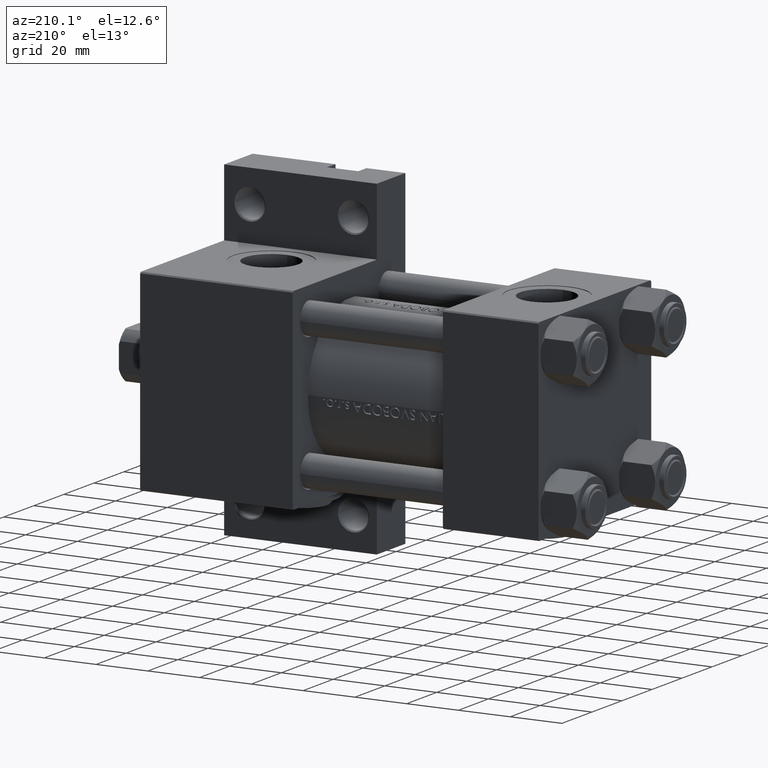
[diagram: clean part render]
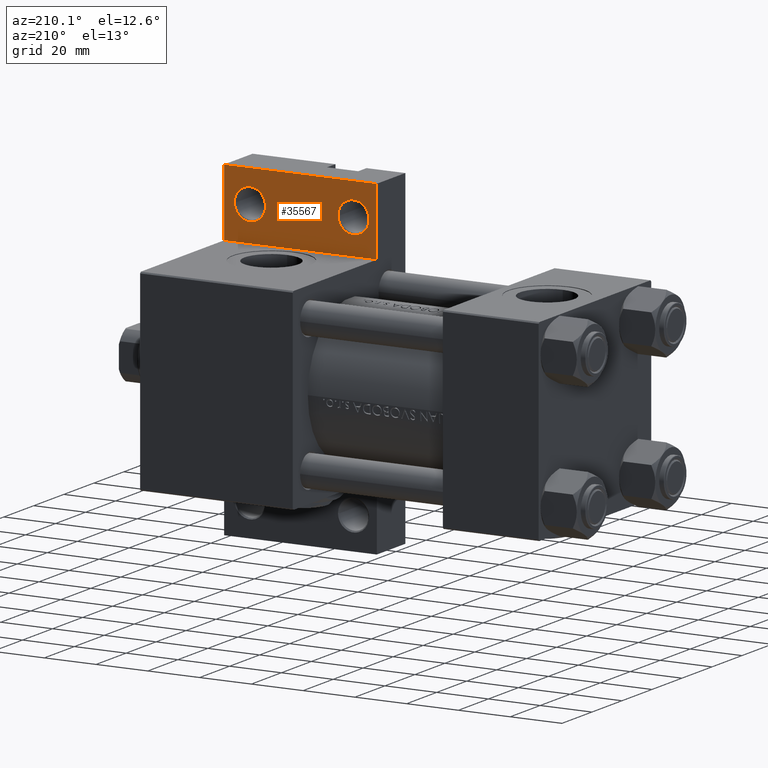
[diagram: same view with one face highlighted and labeled with its STEP entity id]
A machine part, auxiliary view. The second image highlights one B-rep face of the part: STEP entity #35567.
In plain terms, the highlighted planar face has unit normal (0, -1, 0).
Its self-contained STEP definition (entity closure, byte-faithful):
#967 = EDGE_CURVE ( 'NONE', #33655, #18885, #31754, .T. ) ;
#1028 = CARTESIAN_POINT ( 'NONE',  ( 153.9999999999999716, -63.50000000000002842, -18.50000000000000000 ) ) ;
#3490 = VECTOR ( 'NONE', #7738, 1000.000000000000000 ) ;
#5004 = CIRCLE ( 'NONE', #21058, 5.999500000000046462 ) ;
#5190 = CARTESIAN_POINT ( 'NONE',  ( 143.9999999999999716, -51.00000000000000000, -18.50000000000000000 ) ) ;
#5762 = EDGE_CURVE ( 'NONE', #24604, #45387, #16284, .T. ) ;
#6164 = DIRECTION ( 'NONE',  ( -1.000000000000000000, 0.000000000000000000, 0.000000000000000000 ) ) ;
#6352 = CARTESIAN_POINT ( 'NONE',  ( 0.000000000000000000, 0.000000000000000000, -18.50000000000000000 ) ) ;
#6637 = AXIS2_PLACEMENT_3D ( 'NONE', #7726, #8469, #38602 ) ;
#6718 = EDGE_CURVE ( 'NONE', #45387, #33655, #22314, .T. ) ;
#6927 = CARTESIAN_POINT ( 'NONE',  ( 95.00000000000000000, -37.50000000000000000, -18.50000000000000000 ) ) ;
#7726 = CARTESIAN_POINT ( 'NONE',  ( 103.9999999999999574, -50.99999999999999289, -18.50000000000000000 ) ) ;
#7738 = DIRECTION ( 'NONE',  ( -0.000000000000000000, -1.000000000000000000, -0.000000000000000000 ) ) ;
#8420 = CARTESIAN_POINT ( 'NONE',  ( 94.99999999999998579, -63.50000000000000000, -18.50000000000000000 ) ) ;
#8469 = DIRECTION ( 'NONE',  ( 0.000000000000000000, 0.000000000000000000, -1.000000000000000000 ) ) ;
#10429 = DIRECTION ( 'NONE',  ( 0.000000000000000000, 0.000000000000000000, -1.000000000000000000 ) ) ;
#11566 = ORIENTED_EDGE ( 'NONE', *, *, #29665, .F. ) ;
#12532 = VECTOR ( 'NONE', #19946, 1000.000000000000000 ) ;
#12971 = DIRECTION ( 'NONE',  ( -1.000000000000000000, 0.000000000000000000, 0.000000000000000000 ) ) ;
#13396 = DIRECTION ( 'NONE',  ( 0.000000000000000000, 0.000000000000000000, -1.000000000000000000 ) ) ;
#13904 = AXIS2_PLACEMENT_3D ( 'NONE', #45101, #10429, #6164 ) ;
#14432 = ORIENTED_EDGE ( 'NONE', *, *, #6718, .F. ) ;
#15016 = EDGE_CURVE ( 'NONE', #49009, #19083, #5004, .T. ) ;
#16284 = LINE ( 'NONE', #20056, #35673 ) ;
#16918 = VERTEX_POINT ( 'NONE', #45358 ) ;
#17913 = CIRCLE ( 'NONE', #13904, 5.999500000000046462 ) ;
#18541 = VERTEX_POINT ( 'NONE', #23851 ) ;
#18885 = VERTEX_POINT ( 'NONE', #18952 ) ;
#18910 = EDGE_LOOP ( 'NONE', ( #37828, #43829 ) ) ;
#18952 = CARTESIAN_POINT ( 'NONE',  ( 94.99999999999998579, -63.50000000000000000, -18.50000000000000000 ) ) ;
#19083 = VERTEX_POINT ( 'NONE', #25699 ) ;
#19570 = DIRECTION ( 'NONE',  ( 1.000000000000000000, -3.528251137579948571E-16, 0.000000000000000000 ) ) ;
#19946 = DIRECTION ( 'NONE',  ( -1.000000000000000000, 4.704334850106596780E-16, -0.000000000000000000 ) ) ;
#20056 = CARTESIAN_POINT ( 'NONE',  ( 95.00000000000000000, -37.50000000000000000, -18.50000000000000000 ) ) ;
#21058 = AXIS2_PLACEMENT_3D ( 'NONE', #5190, #36324, #12971 ) ;
#21138 = AXIS2_PLACEMENT_3D ( 'NONE', #6352, #48570, #44803 ) ;
#22314 = LINE ( 'NONE', #49698, #3490 ) ;
#22697 = CIRCLE ( 'NONE', #6637, 5.999500000000046462 ) ;
#23851 = CARTESIAN_POINT ( 'NONE',  ( 98.00049999999988870, -50.99999999999999289, -18.50000000000000000 ) ) ;
#24604 = VERTEX_POINT ( 'NONE', #6927 ) ;
#25202 = FACE_BOUND ( 'NONE', #18910, .T. ) ;
#25449 = PLANE ( 'NONE',  #21138 ) ;
#25645 = CARTESIAN_POINT ( 'NONE',  ( 94.99999999999998579, -63.50000000000000000, -18.50000000000000000 ) ) ;
#25699 = CARTESIAN_POINT ( 'NONE',  ( 138.0004999999999029, -51.00000000000000000, -18.50000000000000000 ) ) ;
#29442 = CARTESIAN_POINT ( 'NONE',  ( 154.0000000000000000, -37.50000000000000711, -18.50000000000000355 ) ) ;
#29665 = EDGE_CURVE ( 'NONE', #18885, #24604, #41723, .T. ) ;
#29906 = DIRECTION ( 'NONE',  ( 5.337610695313252371E-16, 1.000000000000000000, 0.000000000000000000 ) ) ;
#31731 = CARTESIAN_POINT ( 'NONE',  ( 143.9999999999999716, -51.00000000000000000, -18.50000000000000000 ) ) ;
#31754 = LINE ( 'NONE', #8420, #12532 ) ;
#32439 = AXIS2_PLACEMENT_3D ( 'NONE', #31731, #13396, #35501 ) ;
#33655 = VERTEX_POINT ( 'NONE', #1028 ) ;
#33817 = VECTOR ( 'NONE', #29906, 1000.000000000000000 ) ;
#34559 = ORIENTED_EDGE ( 'NONE', *, *, #46108, .T. ) ;
#35107 = EDGE_CURVE ( 'NONE', #18541, #16918, #17913, .T. ) ;
#35501 = DIRECTION ( 'NONE',  ( -1.000000000000000000, 0.000000000000000000, 0.000000000000000000 ) ) ;
#35567 = ADVANCED_FACE ( 'NONE', ( #45299, #25202, #36751 ), #25449, .F. ) ;
#35673 = VECTOR ( 'NONE', #19570, 1000.000000000000000 ) ;
#36324 = DIRECTION ( 'NONE',  ( 0.000000000000000000, 0.000000000000000000, -1.000000000000000000 ) ) ;
#36751 = FACE_OUTER_BOUND ( 'NONE', #47067, .T. ) ;
#37828 = ORIENTED_EDGE ( 'NONE', *, *, #40957, .T. ) ;
#38078 = CIRCLE ( 'NONE', #32439, 5.999500000000046462 ) ;
#38602 = DIRECTION ( 'NONE',  ( -1.000000000000000000, 0.000000000000000000, 0.000000000000000000 ) ) ;
#40657 = CARTESIAN_POINT ( 'NONE',  ( 149.9995000000000118, -51.00000000000000000, -18.50000000000000000 ) ) ;
#40957 = EDGE_CURVE ( 'NONE', #16918, #18541, #22697, .T. ) ;
#41723 = LINE ( 'NONE', #25645, #33817 ) ;
#43829 = ORIENTED_EDGE ( 'NONE', *, *, #35107, .T. ) ;
#44673 = ORIENTED_EDGE ( 'NONE', *, *, #5762, .F. ) ;
#44803 = DIRECTION ( 'NONE',  ( -1.000000000000000000, 0.000000000000000000, -0.000000000000000000 ) ) ;
#45101 = CARTESIAN_POINT ( 'NONE',  ( 103.9999999999999574, -50.99999999999999289, -18.50000000000000000 ) ) ;
#45299 = FACE_BOUND ( 'NONE', #45705, .T. ) ;
#45358 = CARTESIAN_POINT ( 'NONE',  ( 109.9995000000000118, -50.99999999999999289, -18.50000000000000000 ) ) ;
#45387 = VERTEX_POINT ( 'NONE', #29442 ) ;
#45705 = EDGE_LOOP ( 'NONE', ( #48122, #34559 ) ) ;
#46108 = EDGE_CURVE ( 'NONE', #19083, #49009, #38078, .T. ) ;
#47067 = EDGE_LOOP ( 'NONE', ( #14432, #44673, #11566, #48492 ) ) ;
#48122 = ORIENTED_EDGE ( 'NONE', *, *, #15016, .T. ) ;
#48492 = ORIENTED_EDGE ( 'NONE', *, *, #967, .F. ) ;
#48570 = DIRECTION ( 'NONE',  ( 0.000000000000000000, 0.000000000000000000, -1.000000000000000000 ) ) ;
#49009 = VERTEX_POINT ( 'NONE', #40657 ) ;
#49698 = CARTESIAN_POINT ( 'NONE',  ( 153.9999999999999716, -63.50000000000002842, -18.50000000000000000 ) ) ;